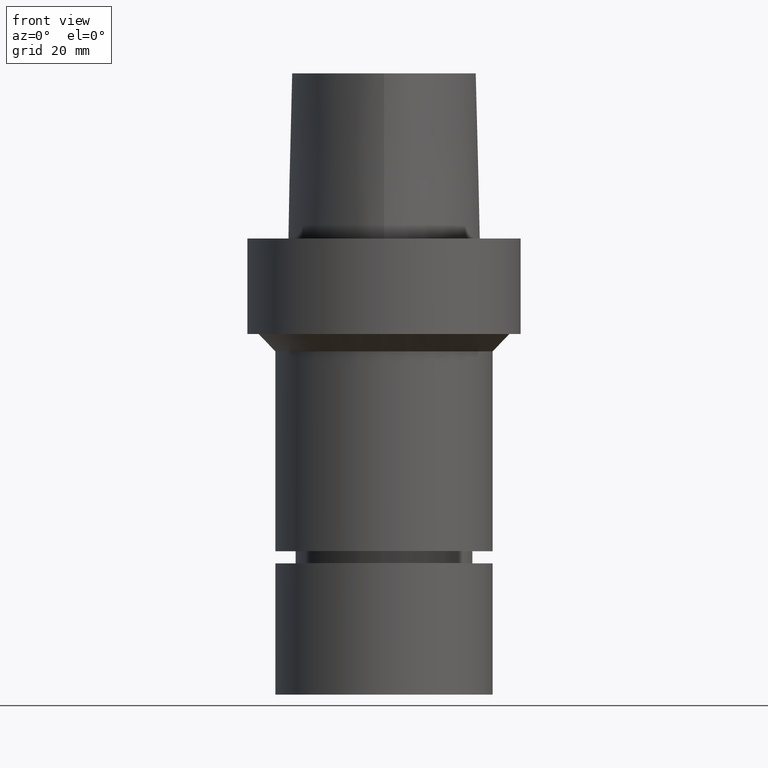
[diagram: clean part render]
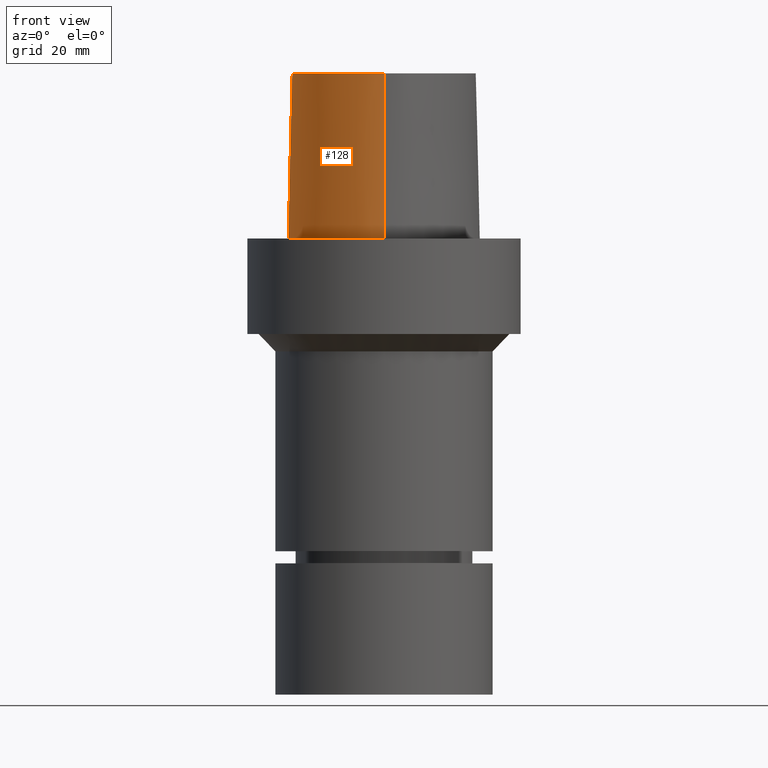
[diagram: same view with one face highlighted and labeled with its STEP entity id]
A machine part, front view. The second image highlights one B-rep face of the part: STEP entity #128.
In plain terms, the highlighted face is a freeform B-spline surface patch.
Its self-contained STEP definition (entity closure, byte-faithful):
#85=EDGE_CURVE('Unnamed[1]',#211,#212,#213,.T.);
#100=EDGE_CURVE('Unnamed[1]',#235,#212,#236,.T.);
#125=EDGE_CURVE('Unnamed[1]',#235,#270,#271,.T.);
#128=ADVANCED_FACE('Unnamed[1]',(#274),#275,.T.);
#130=EDGE_CURVE('Unnamed[1]',#270,#211,#277,.T.);
#211=VERTEX_POINT('',#373);
#212=VERTEX_POINT('',#374);
#213=B_SPLINE_CURVE_WITH_KNOTS('',3,(#375,#376,#377,#378,#379,#380,#381,#382,#383,#384,#385,#386,#387,#388,#389,#390,#391,#392),.UNSPECIFIED.,.F.,.F.,(4,1,1,1,1,1,1,1,1,2,1,1,1,1,4),(-6.6151339308743,-6.20168806019465,-5.78824218951501,-5.37479631883537,-4.96135044815572,-4.13445870679644,-3.30756696543715,-2.89412109475751,-2.48067522407786,-2.06722935339822,-1.65378348271857,-1.24033761203893,-0.826891741359287,-0.413445870679644,0.0),.UNSPECIFIED.);
#235=VERTEX_POINT('',#421);
#236=LINE('',#422,#423);
#270=VERTEX_POINT('',#482);
#271=B_SPLINE_CURVE_WITH_KNOTS('',3,(#483,#484,#485,#486,#487,#488,#489,#490,#491,#492,#493,#494,#495,#496,#497,#498),.UNSPECIFIED.,.F.,.F.,(4,1,1,1,1,1,1,1,1,1,1,1,1,4),(0.0,0.447924670568964,0.9388024242536,1.50591409090711,2.07314340012323,2.72424957442464,3.2253501842849,3.80982102049476,4.34867996267067,4.85900173381144,5.37972031856977,6.03459825488646,6.61113557741484,6.61513393087395),.UNSPECIFIED.);
#274=FACE_OUTER_BOUND('',#502,.T.);
#275=B_SPLINE_SURFACE_WITH_KNOTS('',3,3,((#503,#504,#505,#506),(#507,#508,#509,#510),(#511,#512,#513,#514),(#515,#516,#517,#518),(#519,#520,#521,#522),(#523,#524,#525,#526),(#527,#528,#529,#530),(#531,#532,#533,#534),(#535,#536,#537,#538),(#539,#540,#541,#542),(#543,#544,#545,#546),(#547,#548,#549,#550),(#551,#552,#553,#554),(#555,#556,#557,#558),(#559,#560,#561,#562),(#563,#564,#565,#566),(#567,#568,#569,#570),(#571,#572,#573,#574)),.UNSPECIFIED.,.F.,.F.,.F.,(4,1,1,1,1,1,1,1,1,2,1,1,1,1,4),(4,4),(-6.6151339308743,-6.20168806019465,-5.78824218951501,-5.37479631883537,-4.96135044815572,-4.13445870679644,-3.30756696543715,-2.89412109475751,-2.48067522407786,-2.06722935339822,-1.65378348271857,-1.24033761203893,-0.826891741359287,-0.413445870679644,0.0),(-3.8,0.0),.UNSPECIFIED.);
#277=LINE('',#577,#578);
#373=CARTESIAN_POINT('',(0.04359356758149,-23.4691235068931,7.78075697532443E-032));
#374=CARTESIAN_POINT('',(-0.045171994691285,20.6766009553285,1.6755590516169E-031));
#375=CARTESIAN_POINT('',(0.04359356758149,-23.4691235068931,7.78075697532443E-032));
#376=CARTESIAN_POINT('',(-1.4714994713963,-23.4767895315797,2.46519032881566E-032));
#377=CARTESIAN_POINT('',(-4.43923476371401,-22.821149804767,-4.93038065763132E-032));
#378=CARTESIAN_POINT('',(-8.35043230079961,-20.8000751253325,-9.86076131526265E-032));
#379=CARTESIAN_POINT('',(-11.744900222602,-18.1556117874078,-1.97215226305253E-031));
#380=CARTESIAN_POINT('',(-15.6989602501314,-14.0406306929147,-1.97215226305253E-031));
#381=CARTESIAN_POINT('',(-19.5352875070682,-8.00624990770787,1.97215226305253E-031));
#382=CARTESIAN_POINT('',(-21.7205626190491,-1.16081708945282,0.0));
#383=CARTESIAN_POINT('',(-22.2486616783342,4.54965558738736,0.0));
#384=CARTESIAN_POINT('',(-21.6646421256468,9.00229539124618,0.0));
#385=CARTESIAN_POINT('',(-20.3945635471922,11.7780544971003,0.0));
#386=CARTESIAN_POINT('',(-18.5925528034471,14.1980602922581,0.0));
#387=CARTESIAN_POINT('',(-16.3226584122258,16.1777748720707,0.0));
#388=CARTESIAN_POINT('',(-12.5076407874579,18.2524201541303,9.86076131526265E-032));
#389=CARTESIAN_POINT('',(-8.46776192107786,19.679114377952,9.86076131526265E-032));
#390=CARTESIAN_POINT('',(-4.23043497193604,20.487781597334,1.97215226305253E-031));
#391=CARTESIAN_POINT('',(-1.42313094248379,20.6127745766442,1.10933564796705E-031));
#392=CARTESIAN_POINT('',(-0.045171994691285,20.6766009553285,1.6755590516169E-031));
#421=CARTESIAN_POINT('',(-0.001218547003662,19.7276821925089,38.0));
#422=CARTESIAN_POINT('',(-0.001218547003662,19.7276821925089,38.0));
#423=VECTOR('',#785,38.0118715498723);
#482=CARTESIAN_POINT('',(0.038736923393866,-22.5191997536361,38.0));
#483=CARTESIAN_POINT('',(-0.001218547003662,19.7276821925089,38.0));
#484=CARTESIAN_POINT('',(-1.49408492138443,19.6585333605309,38.0));
#485=CARTESIAN_POINT('',(-4.62297391420352,19.513604770166,38.0));
#486=CARTESIAN_POINT('',(-9.56160616752212,18.4291575730197,38.0));
#487=CARTESIAN_POINT('',(-14.5427684976927,16.2697452580488,38.0));
#488=CARTESIAN_POINT('',(-19.4315563551602,12.5302108980807,38.0));
#489=CARTESIAN_POINT('',(-21.306358833612,6.76352894547076,38.0));
#490=CARTESIAN_POINT('',(-21.0724946936277,0.957075236984038,38.0));
#491=CARTESIAN_POINT('',(-19.7876470880144,-4.34628503581652,38.0));
#492=CARTESIAN_POINT('',(-17.5396999600095,-9.33314444653089,38.0));
#493=CARTESIAN_POINT('',(-14.645447733857,-13.7185760345629,38.0));
#494=CARTESIAN_POINT('',(-10.7996726536643,-17.856257282137,38.0));
#495=CARTESIAN_POINT('',(-6.00479510196376,-21.2687382067675,38.0));
#496=CARTESIAN_POINT('',(-1.90747171908525,-22.5250621415864,38.0));
#497=CARTESIAN_POINT('',(0.025424107066464,-22.5192678176378,38.0));
#498=CARTESIAN_POINT('',(0.038736923394311,-22.519199753636,38.0));
#502=EDGE_LOOP('',(#820,#821,#822,#823));
#503=CARTESIAN_POINT('',(0.038736923393866,-22.5191997536361,38.0));
#504=CARTESIAN_POINT('',(0.04035580478973,-22.8358410047159,25.3333333333066));
#505=CARTESIAN_POINT('',(0.041974686185626,-23.1524822558133,12.6666666666934));
#506=CARTESIAN_POINT('',(0.04359356758149,-23.4691235068931,7.78075697532443E-032));
#507=CARTESIAN_POINT('',(-1.33786123484754,-22.5261650259856,38.0));
#508=CARTESIAN_POINT('',(-1.38240731367927,-22.8430399310626,25.3333333333066));
#509=CARTESIAN_POINT('',(-1.42695339249092,-23.1599147815484,12.6666666666934));
#510=CARTESIAN_POINT('',(-1.4714994713963,-23.4767895315797,2.46519032881566E-032));
#511=CARTESIAN_POINT('',(-4.08909358431842,-21.9268839879558,38.0));
#512=CARTESIAN_POINT('',(-4.20580731135515,-22.2249725500078,25.3333333333066));
#513=CARTESIAN_POINT('',(-4.32252104640446,-22.5230611651922,12.6666666666934));
#514=CARTESIAN_POINT('',(-4.43923476371401,-22.821149804767,-4.93038065763132E-032));
#515=CARTESIAN_POINT('',(-7.8333083619947,-19.9973514861616,38.0));
#516=CARTESIAN_POINT('',(-8.00568301809614,-20.2649260859405,25.3333333333066));
#517=CARTESIAN_POINT('',(-8.1780576640789,-20.532500564315,12.6666666666934));
#518=CARTESIAN_POINT('',(-8.35043230079961,-20.8000751253325,-9.86076131526265E-032));
#519=CARTESIAN_POINT('',(-11.1035071147626,-17.450554957873,38.0));
#520=CARTESIAN_POINT('',(-11.3173048160562,-17.6855739222454,25.3333333333066));
#521=CARTESIAN_POINT('',(-11.5311025116181,-17.9205928617968,12.6666666666934));
#522=CARTESIAN_POINT('',(-11.744900222602,-18.1556117874078,-1.97215226305253E-031));
#523=CARTESIAN_POINT('',(-14.9379535189057,-13.461132049697,38.0));
#524=CARTESIAN_POINT('',(-15.191622410671,-13.6542981711372,25.3333333333066));
#525=CARTESIAN_POINT('',(-15.4452913389853,-13.8474645327131,12.6666666666934));
#526=CARTESIAN_POINT('',(-15.6989602501314,-14.0406306929147,-1.97215226305253E-031));
#527=CARTESIAN_POINT('',(-18.6681263017223,-7.59391757463204,38.0));
#528=CARTESIAN_POINT('',(-18.9571800800711,-7.73136168081928,25.3333333333066));
#529=CARTESIAN_POINT('',(-19.2462337287194,-7.86880572399774,12.6666666666934));
#530=CARTESIAN_POINT('',(-19.5352875070682,-8.00624990770787,1.97215226305253E-031));
#531=CARTESIAN_POINT('',(-20.7857899858339,-0.952862819790525,38.0));
#532=CARTESIAN_POINT('',(-21.0973808305434,-1.02218087467418,25.3333333333066));
#533=CARTESIAN_POINT('',(-21.408971677436,-1.09149899580772,12.6666666666934));
#534=CARTESIAN_POINT('',(-21.7205626190491,-1.16081708945282,0.0));
#535=CARTESIAN_POINT('',(-21.2911760556836,4.5469215763113,38.0));
#536=CARTESIAN_POINT('',(-21.610337904926,4.54783292082248,25.3333333333066));
#537=CARTESIAN_POINT('',(-21.9294998290918,4.54874426225691,12.6666666666934));
#538=CARTESIAN_POINT('',(-22.2486616783342,4.54965558738736,0.0));
#539=CARTESIAN_POINT('',(-20.7345309521958,8.74909381391006,38.0));
#540=CARTESIAN_POINT('',(-21.0445680426217,8.83349432450556,25.3333333333066));
#541=CARTESIAN_POINT('',(-21.3546050933631,8.91789488065068,12.6666666666934));
#542=CARTESIAN_POINT('',(-21.6646421256468,9.00229539124618,0.0));
#543=CARTESIAN_POINT('',(-19.5531512296439,11.3174844040833,38.0));
#544=CARTESIAN_POINT('',(-19.8336219699984,11.4710077674213,25.3333333333066));
#545=CARTESIAN_POINT('',(-20.1140927680763,11.6245311337623,12.6666666666934));
#546=CARTESIAN_POINT('',(-20.3945635471922,11.7780544971003,0.0));
#547=CARTESIAN_POINT('',(-17.9100913688793,13.524027510437,38.0));
#548=CARTESIAN_POINT('',(-18.1375785458768,13.7487051053655,25.3333333333066));
#549=CARTESIAN_POINT('',(-18.365065665211,13.9733826973296,12.6666666666934));
#550=CARTESIAN_POINT('',(-18.5925528034471,14.1980602922581,0.0));
#551=CARTESIAN_POINT('',(-15.7996349656398,15.3762170634413,38.0));
#552=CARTESIAN_POINT('',(-15.9739761051783,15.6434029846179,25.3333333333066));
#553=CARTESIAN_POINT('',(-16.1483172726872,15.9105889315134,12.6666666666934));
#554=CARTESIAN_POINT('',(-16.3226584122258,16.1777748720707,0.0));
#555=CARTESIAN_POINT('',(-12.1175640002064,17.3825162484012,38.0));
#556=CARTESIAN_POINT('',(-12.2475895903055,17.6724842099619,25.3333333333066));
#557=CARTESIAN_POINT('',(-12.3776152070492,17.9624521925696,12.6666666666934));
#558=CARTESIAN_POINT('',(-12.5076407874579,18.2524201541303,9.86076131526265E-032));
#559=CARTESIAN_POINT('',(-8.21761151654222,18.7588585989994,38.0));
#560=CARTESIAN_POINT('',(-8.30099497910627,19.0656105427881,25.3333333333066));
#561=CARTESIAN_POINT('',(-8.38437843913309,19.3723624535439,12.6666666666934));
#562=CARTESIAN_POINT('',(-8.46776192107786,19.679114377952,9.86076131526265E-032));
#563=CARTESIAN_POINT('',(-4.13466093881225,19.5396850837055,38.0));
#564=CARTESIAN_POINT('',(-4.16658562115465,19.8557172636973,25.3333333333066));
#565=CARTESIAN_POINT('',(-4.19851029939059,20.1717494367229,12.6666666666934));
#566=CARTESIAN_POINT('',(-4.23043497193604,20.487781597334,1.97215226305253E-031));
#567=CARTESIAN_POINT('',(-1.37917220403684,19.6638560588908,38.0));
#568=CARTESIAN_POINT('',(-1.39382511685176,19.98016223565,25.3333333333066));
#569=CARTESIAN_POINT('',(-1.40847802945569,20.296468399885,12.6666666666934));
#570=CARTESIAN_POINT('',(-1.42313094248379,20.6127745766442,1.10933564796705E-031));
#571=CARTESIAN_POINT('',(-0.001218547003662,19.7276821925089,38.0));
#572=CARTESIAN_POINT('',(-0.015869696232855,20.043988446791,25.3333333333066));
#573=CARTESIAN_POINT('',(-0.030520845462092,20.3602947010464,12.6666666666934));
#574=CARTESIAN_POINT('',(-0.045171994691285,20.6766009553285,1.6755590516169E-031));
#577=CARTESIAN_POINT('',(0.038736923393866,-22.5191997536361,38.0));
#578=VECTOR('',#824,38.0118715498723);
#785=DIRECTION('',(-0.001156308434589,0.02496374748543,-0.999687688361864));
#820=ORIENTED_EDGE('',*,*,#85,.F.);
#821=ORIENTED_EDGE('',*,*,#130,.F.);
#822=ORIENTED_EDGE('',*,*,#125,.F.);
#823=ORIENTED_EDGE('',*,*,#100,.T.);
#824=DIRECTION('',(0.000127766510556,-0.024990186342461,-0.999687688361864));